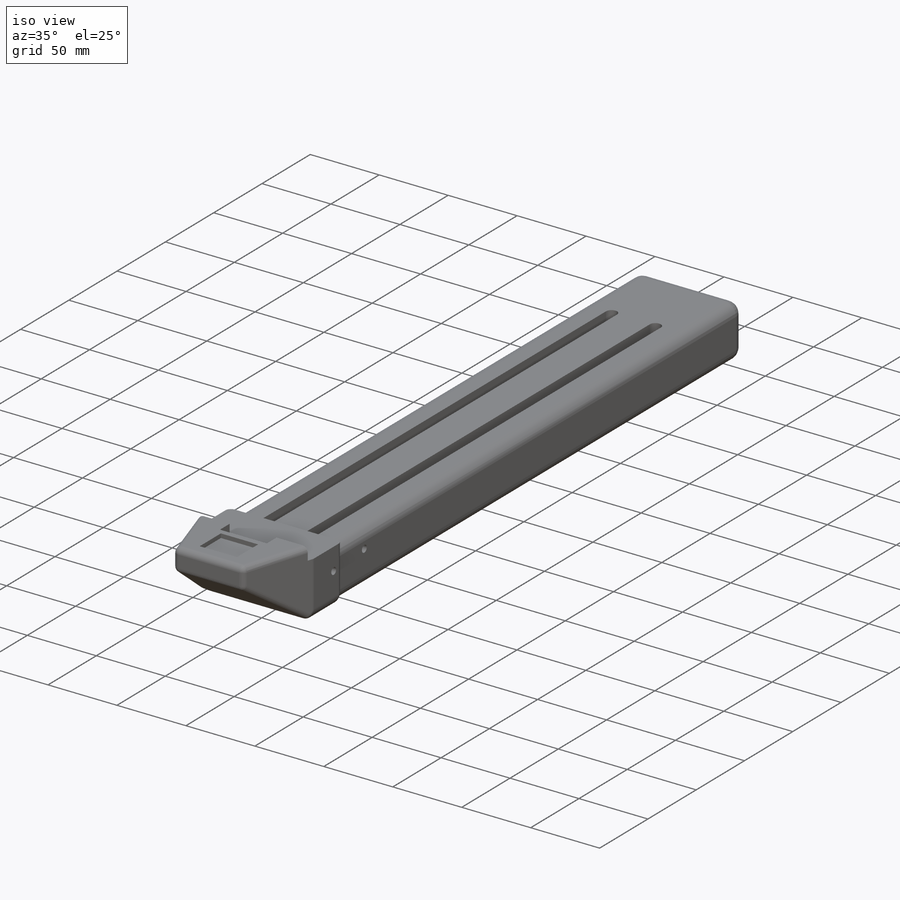
[diagram: iso view]
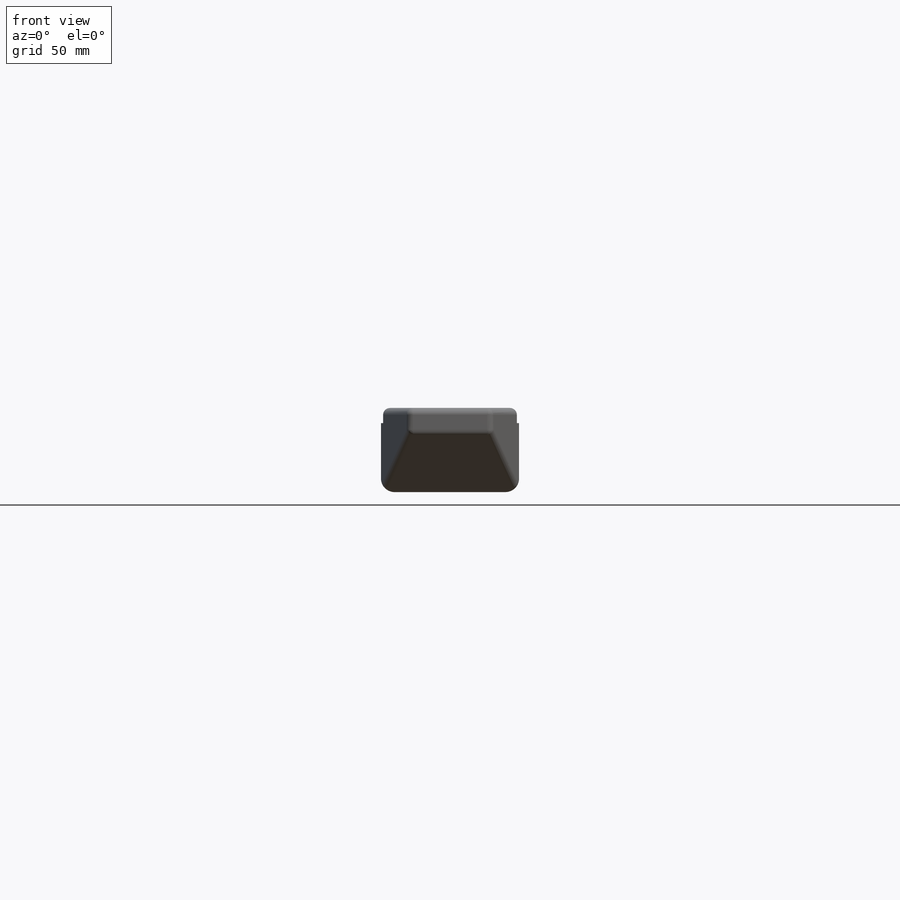
[diagram: front view]
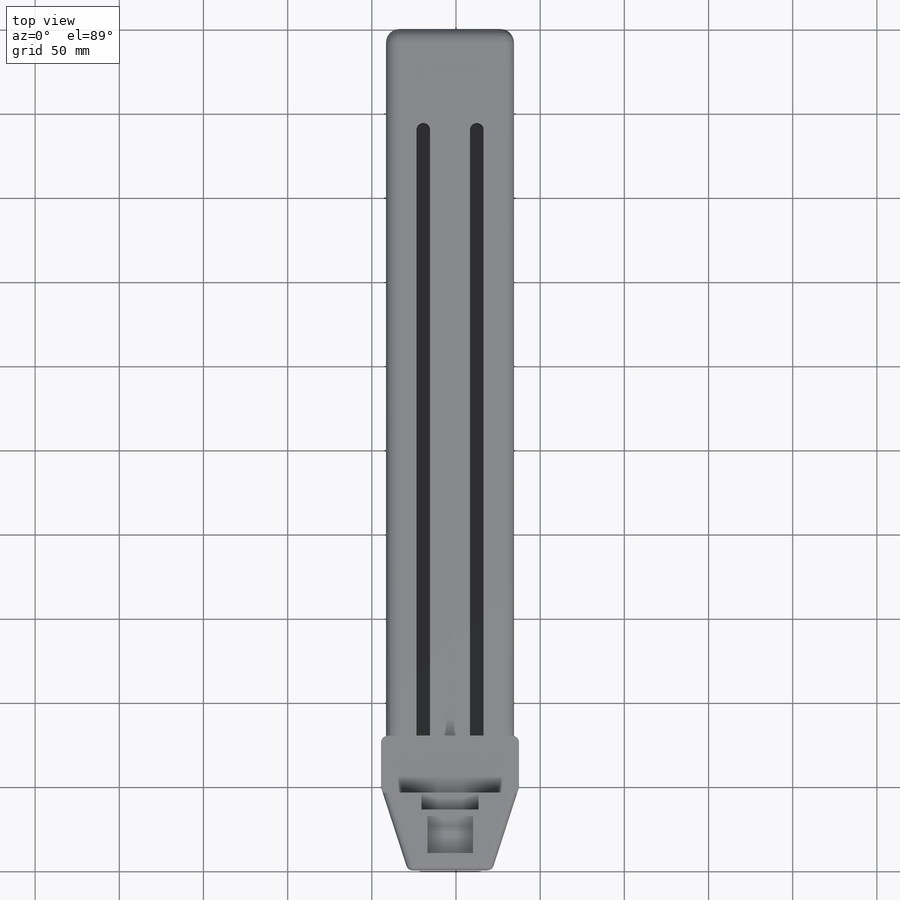
[diagram: top view]
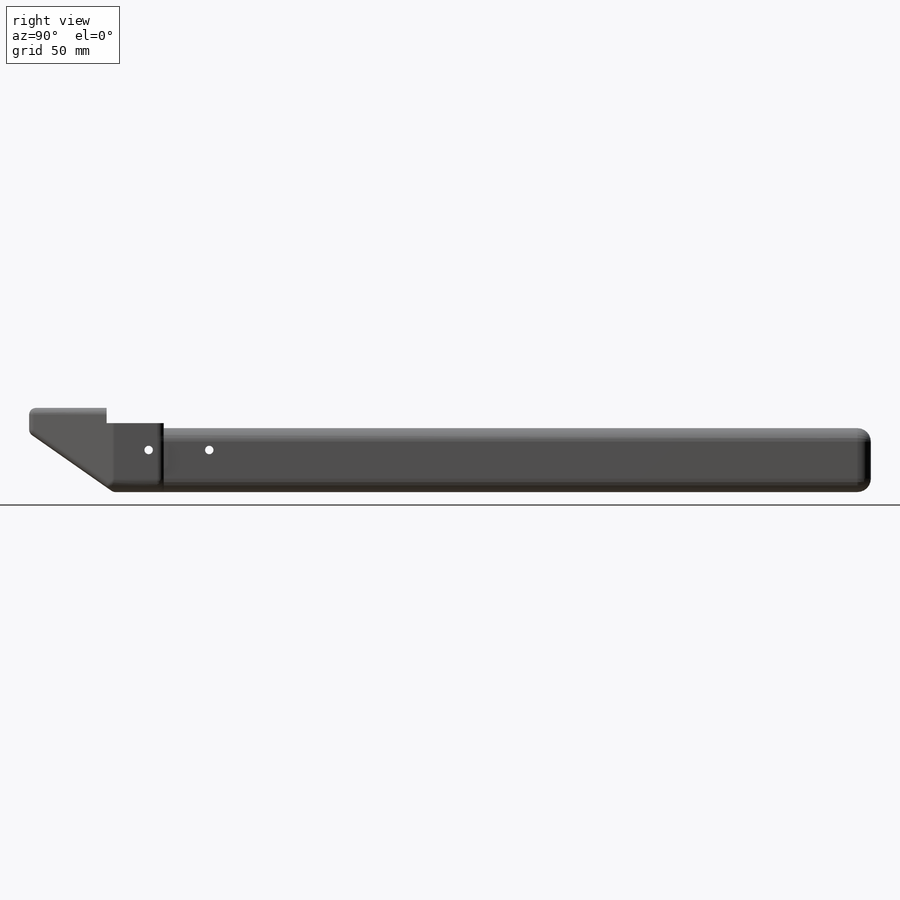
[diagram: right view]
SOLIDWORKS PART (.sldprt)
format: sldprt  version: not decoded by parser v0  size: 426,496 bytes
history: native  units: mm
features: sketch x9, cut_extrude x7, fillet x4, extrude x2, material x1 (+16 scaffold rows collapsed)
feature tree (39):
  scaffold x16  (default folders/planes/origin — collapsed)
  material  "Material <not specified>"
  sketch  "Sketch1"  dims[D1=76.0mm D2=38.0mm]
  extrude  "Extrude1"  Depth=420mm
  fillet  "Fillet1"  Radius=8mm
  sketch  "Sketch2"  dims[c1.D2=8.0mm c1.D3=8.0mm c1.D9=4.0mm c1.D1=31.8mm c1.D4=22.1mm c1.D5=60.0mm c1.D6=60.0mm c1.D7=6.0mm c1.D8=6.0mm c2.D9=22.1mm]
  cut_extrude  "Extrude2"  Depth=30mm
  sketch  "Sketch3"  dims[D1=3.0mm D2=3.0mm D3=50.0mm D4=82.0mm]
  extrude  "Extrude3"  Depth=80mm
  fillet  "Fillet2"  Radius=8mm
  sketch  "Sketch4"  dims[c1.D1=22.0mm c1.D2=22.0mm c1.D3=50.0mm c1.D4=25.0mm c2.D1=30.0mm c2.D2=30.0mm c2.D4=16.0mm c2.D5=16.0mm]
  cut_extrude  "Extrude4"  Depth=64mm
  sketch  "Sketch6"  dims[D1=15.0mm D2=30.0mm]
  cut_extrude  "Extrude5"  [1 undecoded]
  fillet  "Fillet4"  Radius=4mm
  fillet  "Fillet5"  Radius=4mm
  sketch  "Sketch7"  dims[c1.D1=27.0mm c1.D2=8.58mm c1.D3=~2.169272mm c1.D4=22.0mm c1.D5=10.0mm c2.D3=~8.580381mm]
  cut_extrude  "Extrude6"  Depth=3mm
  sketch  "Sketch8"  dims[D1=34.0mm D2=3.5mm D3=4.0mm D4=10.0mm D5=3.5mm]
  cut_extrude  "Extrude7"  Depth=6mm
  sketch  "Sketch9"
  cut_extrude  "Extrude8"  Depth=9mm
  sketch  "Sketch10"  dims[c1.D1=5.0mm c1.D2=5.0mm c1.D4=5.0mm c1.D6=5.0mm c1.D3=36.0mm c2.D4=5.0mm c2.D5=5.0mm c2.D6=11.5mm c3.D4=25.0mm c3.D5=25.0mm c3.D6=25.0mm]
  cut_extrude  "Extrude9"  [1 undecoded]
decode coverage: 19 of 22 modeling features carry decoded parameters
note: ~ marks probable driven/reference dimensions
note: 2 parameter values undecoded
note: suppression state not decoded; provenance and decode notes live in map.json
